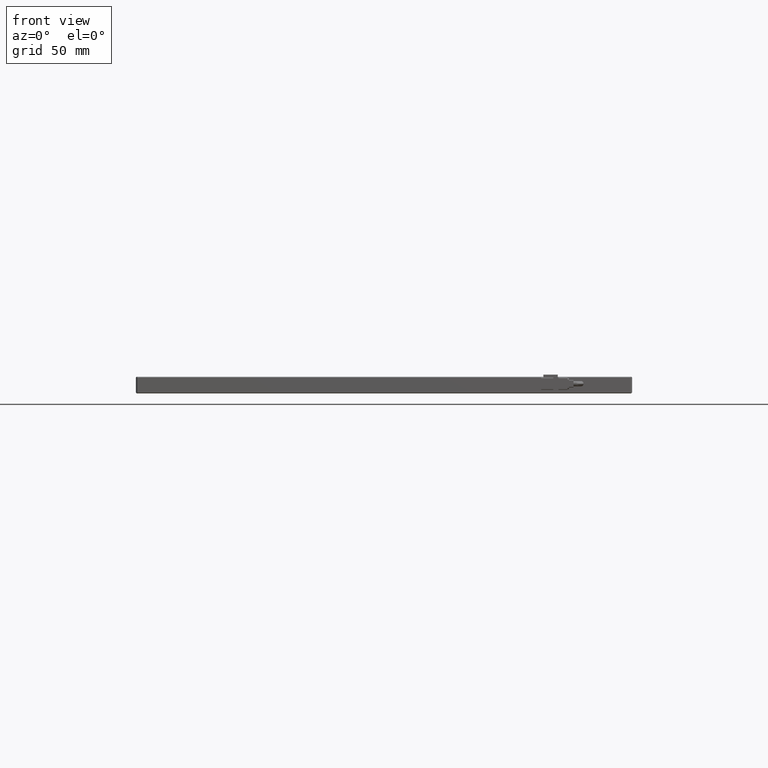
[diagram: clean part render]
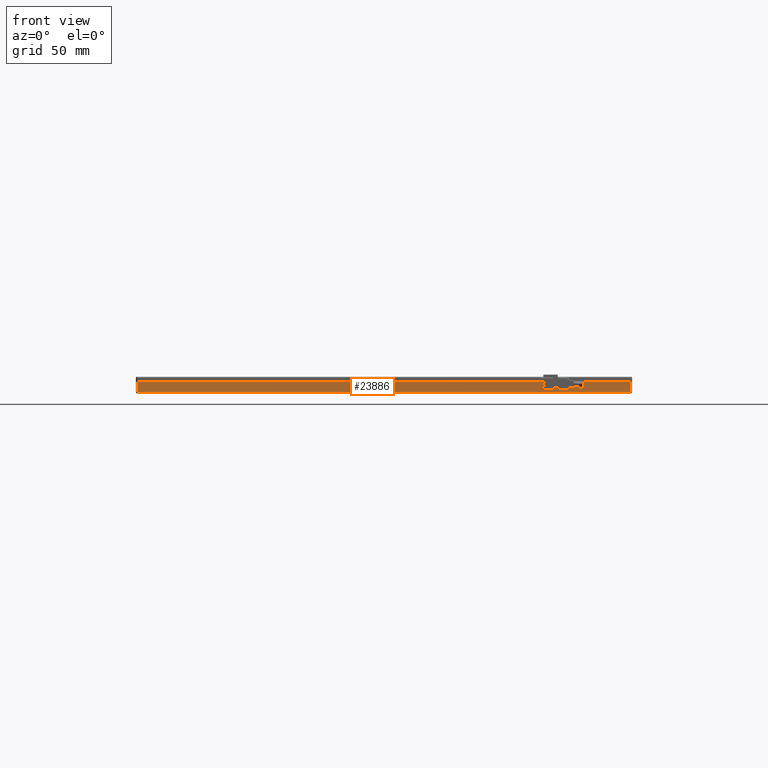
[diagram: same view with one face highlighted and labeled with its STEP entity id]
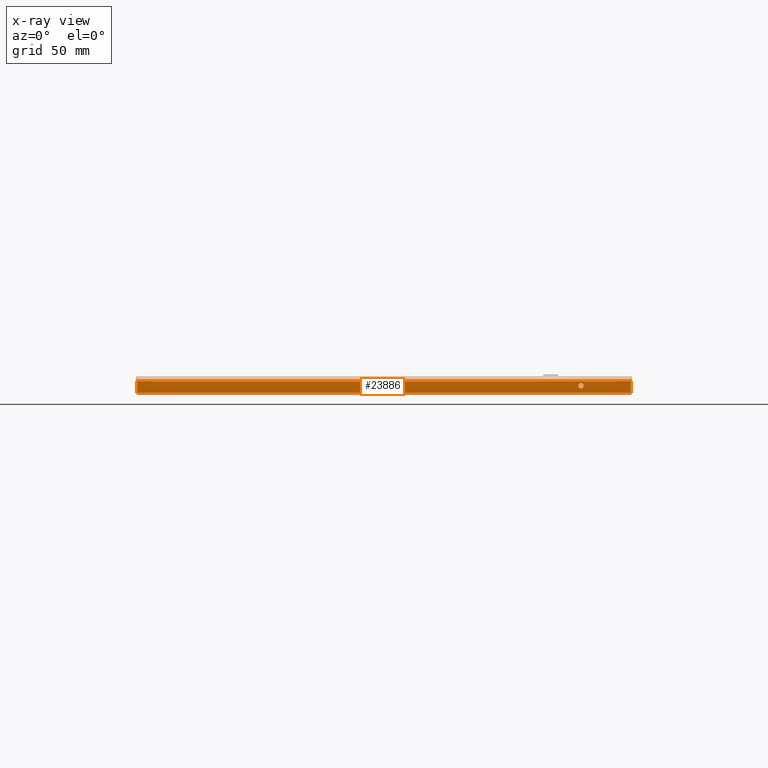
[diagram: x-ray of the same camera — body ghosted, the highlighted face saturated]
A machine part, front view. The second image highlights one B-rep face of the part: STEP entity #23886.
The next image is the same camera in x-ray: the body ghosted, the highlighted face saturated — about 0% of this face is hidden behind the body in this view.
In plain terms, the highlighted planar face has unit normal (-0, 1, 0).
Its self-contained STEP definition (entity closure, byte-faithful):
#156 = ORIENTED_EDGE ( 'NONE', *, *, #14507, .F. ) ;
#332 = VERTEX_POINT ( 'NONE', #26090 ) ;
#1762 = VECTOR ( 'NONE', #8771, 1000.000000000000000 ) ;
#2933 = CARTESIAN_POINT ( 'NONE',  ( -196.2439076390645300, -100.6934259520940500, 8.000000000019099400 ) ) ;
#2965 = EDGE_CURVE ( 'NONE', #332, #7805, #20371, .T. ) ;
#3431 = DIRECTION ( 'NONE',  ( 0.0000000000000000000, 0.0000000000000000000, 1.000000000000000000 ) ) ;
#3564 = CIRCLE ( 'NONE', #11525, 1.749999999999973800 ) ;
#4425 = ORIENTED_EDGE ( 'NONE', *, *, #11835, .F. ) ;
#4689 = DIRECTION ( 'NONE',  ( 0.0000000000000000000, 0.0000000000000000000, -1.000000000000000000 ) ) ;
#4893 = VERTEX_POINT ( 'NONE', #30813 ) ;
#6839 = LINE ( 'NONE', #22910, #17674 ) ;
#7218 = ORIENTED_EDGE ( 'NONE', *, *, #17459, .F. ) ;
#7805 = VERTEX_POINT ( 'NONE', #9129 ) ;
#7978 = EDGE_CURVE ( 'NONE', #7805, #332, #3564, .T. ) ;
#8218 = CARTESIAN_POINT ( 'NONE',  ( -195.2439076390645600, -100.6934259520940500, 8.000000000019099400 ) ) ;
#8771 = DIRECTION ( 'NONE',  ( -0.0000000000000000000, -0.0000000000000000000, -1.000000000000000000 ) ) ;
#9129 = CARTESIAN_POINT ( 'NONE',  ( 99.75609236093552600, -100.6934259520940000, 6.750000000019072700 ) ) ;
#9564 = CARTESIAN_POINT ( 'NONE',  ( 99.75609236093552600, -100.6934259520940000, 5.000000000019098500 ) ) ;
#11025 = LINE ( 'NONE', #2933, #32604 ) ;
#11525 = AXIS2_PLACEMENT_3D ( 'NONE', #9564, #27566, #4689 ) ;
#11798 = PLANE ( 'NONE',  #20743 ) ;
#11835 = EDGE_CURVE ( 'NONE', #28491, #4893, #6839, .T. ) ;
#11991 = VERTEX_POINT ( 'NONE', #25597 ) ;
#12271 = FACE_OUTER_BOUND ( 'NONE', #25435, .T. ) ;
#13736 = CARTESIAN_POINT ( 'NONE',  ( 132.7560923609354400, -100.6934259520940000, 8.000000000019099400 ) ) ;
#14378 = DIRECTION ( 'NONE',  ( -1.224646799147353200E-016, 1.000000000000000000, 0.0000000000000000000 ) ) ;
#14507 = EDGE_CURVE ( 'NONE', #24561, #11991, #11025, .T. ) ;
#14907 = DIRECTION ( 'NONE',  ( -1.000000000000000000, -6.123233995736764800E-017, -6.123233995736764800E-017 ) ) ;
#14958 = LINE ( 'NONE', #13736, #1762 ) ;
#15273 = EDGE_LOOP ( 'NONE', ( #31061, #32741 ) ) ;
#17154 = CARTESIAN_POINT ( 'NONE',  ( -196.2439076390645300, -100.6934259520940500, 8.000000000019099400 ) ) ;
#17201 = AXIS2_PLACEMENT_3D ( 'NONE', #17653, #22641, #20374 ) ;
#17207 = VECTOR ( 'NONE', #3431, 1000.000000000000000 ) ;
#17459 = EDGE_CURVE ( 'NONE', #11991, #28491, #14958, .T. ) ;
#17653 = CARTESIAN_POINT ( 'NONE',  ( 99.75609236093552600, -100.6934259520940000, 5.000000000019098500 ) ) ;
#17674 = VECTOR ( 'NONE', #14907, 1000.000000000000000 ) ;
#17814 = CARTESIAN_POINT ( 'NONE',  ( -195.2439076390645600, -100.6934259520940500, 8.000000000019099400 ) ) ;
#20371 = CIRCLE ( 'NONE', #17201, 1.749999999999973800 ) ;
#20374 = DIRECTION ( 'NONE',  ( 0.0000000000000000000, 0.0000000000000000000, -1.000000000000000000 ) ) ;
#20673 = CARTESIAN_POINT ( 'NONE',  ( 132.7560923609355500, -100.6934259520940000, 0.5000000000190355500 ) ) ;
#20743 = AXIS2_PLACEMENT_3D ( 'NONE', #17154, #14378, #27297 ) ;
#22641 = DIRECTION ( 'NONE',  ( -0.0000000000000000000, -1.000000000000000000, -0.0000000000000000000 ) ) ;
#22910 = CARTESIAN_POINT ( 'NONE',  ( -196.2439076390645300, -100.6934259520940300, 0.5000000000190226700 ) ) ;
#23886 = ADVANCED_FACE ( 'NONE', ( #12271, #31545 ), #11798, .F. ) ;
#23935 = ORIENTED_EDGE ( 'NONE', *, *, #30572, .F. ) ;
#24561 = VERTEX_POINT ( 'NONE', #17814 ) ;
#25435 = EDGE_LOOP ( 'NONE', ( #4425, #7218, #156, #23935 ) ) ;
#25597 = CARTESIAN_POINT ( 'NONE',  ( 132.7560923609354400, -100.6934259520940300, 8.000000000019099400 ) ) ;
#26026 = DIRECTION ( 'NONE',  ( 1.000000000000000000, 1.224646799147353200E-016, -0.0000000000000000000 ) ) ;
#26090 = CARTESIAN_POINT ( 'NONE',  ( 99.75609236093552600, -100.6934259520940000, 3.250000000019124700 ) ) ;
#27297 = DIRECTION ( 'NONE',  ( -1.000000000000000000, -1.224646799147353200E-016, 0.0000000000000000000 ) ) ;
#27566 = DIRECTION ( 'NONE',  ( -0.0000000000000000000, -1.000000000000000000, -0.0000000000000000000 ) ) ;
#28462 = LINE ( 'NONE', #8218, #17207 ) ;
#28491 = VERTEX_POINT ( 'NONE', #20673 ) ;
#30572 = EDGE_CURVE ( 'NONE', #4893, #24561, #28462, .T. ) ;
#30813 = CARTESIAN_POINT ( 'NONE',  ( -195.2439076390645600, -100.6934259520940500, 0.5000000000190389900 ) ) ;
#31061 = ORIENTED_EDGE ( 'NONE', *, *, #2965, .F. ) ;
#31545 = FACE_BOUND ( 'NONE', #15273, .T. ) ;
#32604 = VECTOR ( 'NONE', #26026, 1000.000000000000000 ) ;
#32741 = ORIENTED_EDGE ( 'NONE', *, *, #7978, .F. ) ;